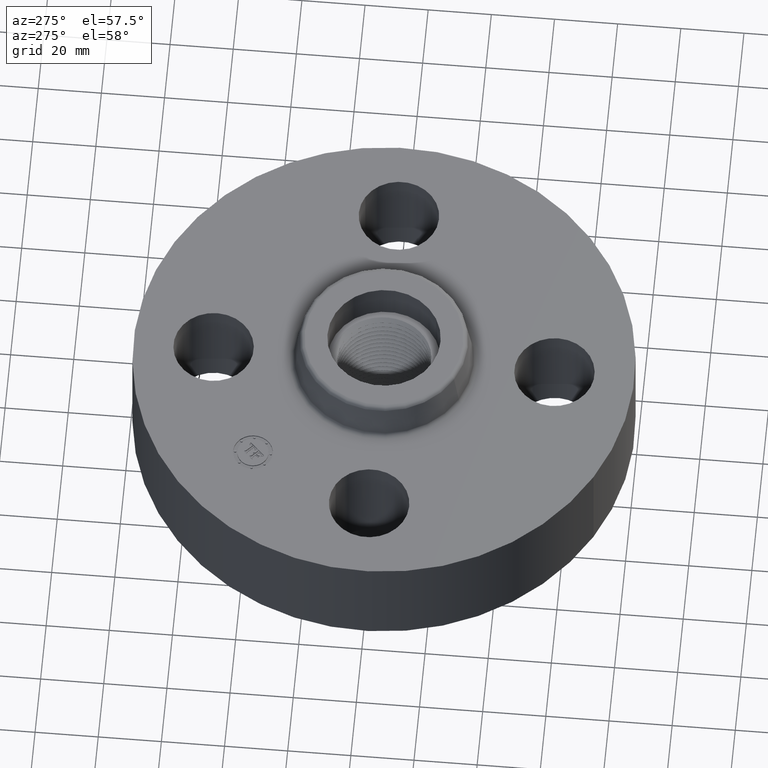
[diagram: clean part render]
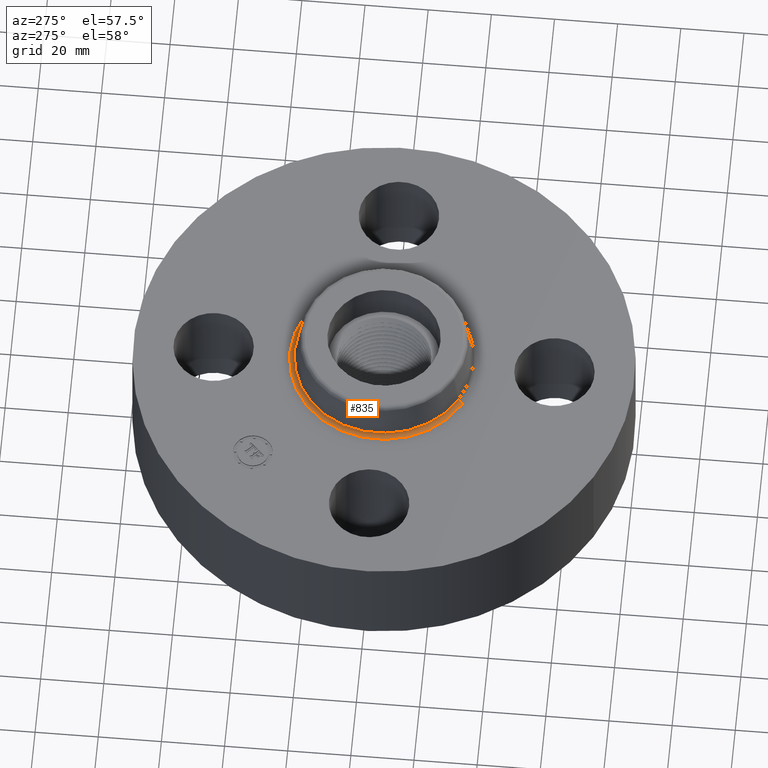
[diagram: same view with one face highlighted and labeled with its STEP entity id]
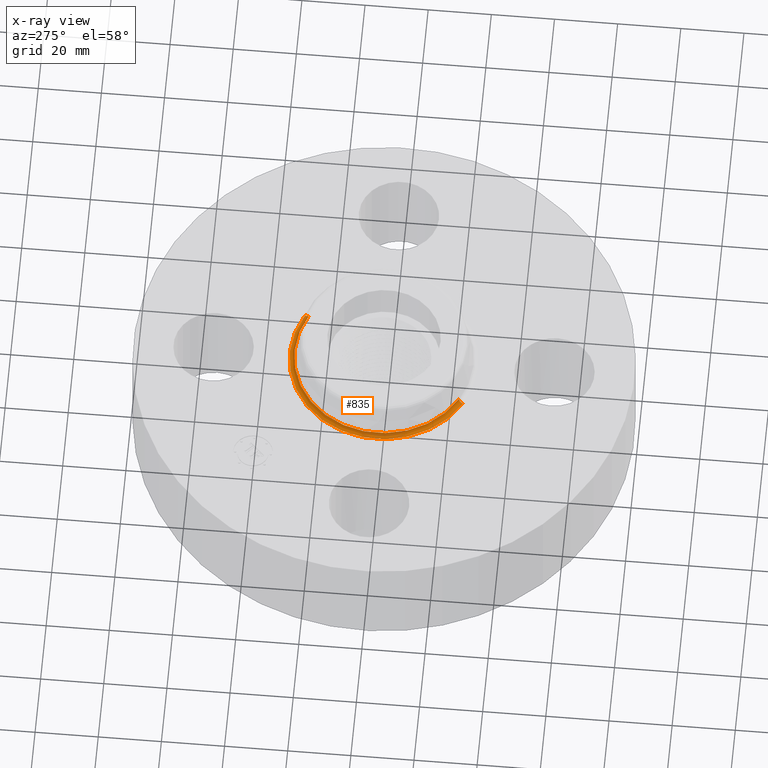
[diagram: x-ray of the same camera — body ghosted, the highlighted face saturated]
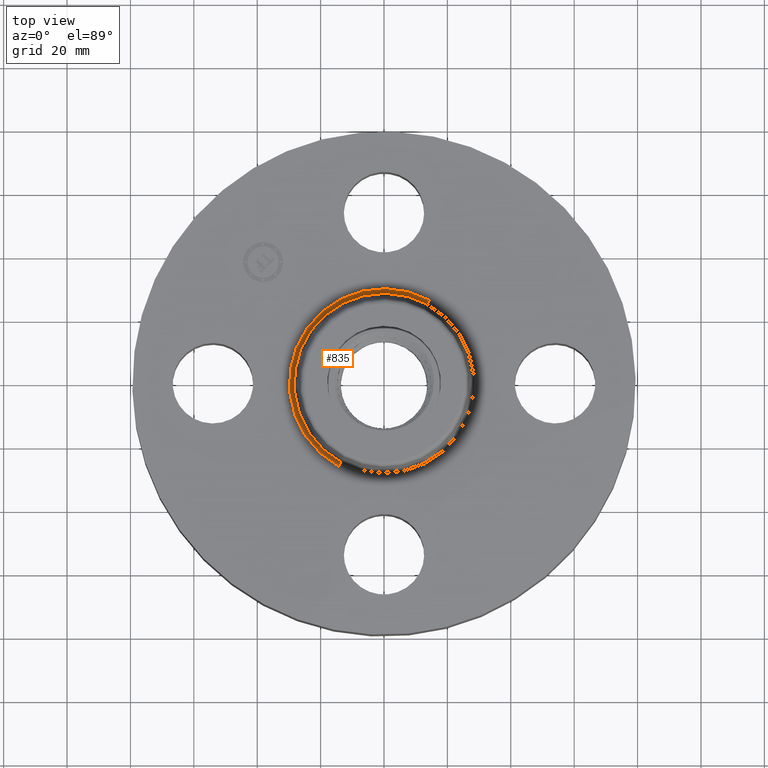
[diagram: same view with one face highlighted and labeled with its STEP entity id]
A machine part, auxiliary view. The second image highlights one B-rep face of the part: STEP entity #835.
The next image is the same camera in x-ray: the body ghosted, the highlighted face saturated — about 0% of this face is hidden behind the body in this view.
A second angle (top view) of the same face is appended — the face is thin or edge-on in the first view.
In plain terms, the highlighted toroidal blend (fillet) surface has major radius 29.8538 mm and minor (blend) radius 1.524 mm.
Its self-contained STEP definition (entity closure, byte-faithful):
#769=AXIS2_PLACEMENT_3D('Circle Axis2P3D',#767,#768,$) ;
#808=AXIS2_PLACEMENT_3D('Torus Axis2P3D',#805,#806,#807) ;
#812=AXIS2_PLACEMENT_3D('Circle Axis2P3D',#810,#811,$) ;
#821=AXIS2_PLACEMENT_3D('Circle Axis2P3D',#819,#820,$) ;
#826=AXIS2_PLACEMENT_3D('Circle Axis2P3D',#824,#825,$) ;
#767=CARTESIAN_POINT('Axis2P3D Location',(0.,0.,1.42958110935)) ;
#771=CARTESIAN_POINT('Vertex',(-0.535162359244,-0.97960812772,1.42958110935)) ;
#773=CARTESIAN_POINT('Vertex',(0.535162359244,0.97960812772,1.42958110935)) ;
#805=CARTESIAN_POINT('Axis2P3D Location',(0.,0.,1.44000000001)) ;
#810=CARTESIAN_POINT('Axis2P3D Location',(0.,0.,1.38000000001)) ;
#814=CARTESIAN_POINT('Vertex',(-0.563490878489,-1.03146313437,1.38000000001)) ;
#816=CARTESIAN_POINT('Vertex',(0.563490878489,1.03146313437,1.38000000001)) ;
#819=CARTESIAN_POINT('Axis2P3D Location',(-0.563490878489,-1.03146313437,1.44000000001)) ;
#824=CARTESIAN_POINT('Axis2P3D Location',(0.563490878489,1.03146313437,1.44000000001)) ;
#768=DIRECTION('Axis2P3D Direction',(0.,0.,-0.0393700787402)) ;
#806=DIRECTION('Axis2P3D Direction',(0.,0.,-0.0393700787402)) ;
#807=DIRECTION('Axis2P3D XDirection',(0.0188750212049,0.0345504945626,0.)) ;
#811=DIRECTION('Axis2P3D Direction',(0.,0.,-0.0393700787402)) ;
#820=DIRECTION('Axis2P3D Direction',(0.0345504945626,-0.0188750212049,0.)) ;
#825=DIRECTION('Axis2P3D Direction',(-0.0345504945626,0.0188750212049,0.)) ;
#830=ORIENTED_EDGE('',*,*,#818,.F.) ;
#831=ORIENTED_EDGE('',*,*,#823,.T.) ;
#832=ORIENTED_EDGE('',*,*,#775,.T.) ;
#833=ORIENTED_EDGE('',*,*,#828,.F.) ;
#835=ADVANCED_FACE('PartBody',(#834),#809,.F.) ;
#770=CIRCLE('generated circle',#769,1.11625751269) ;
#813=CIRCLE('generated circle',#812,1.17534597788) ;
#822=CIRCLE('generated circle',#821,0.0600000000002) ;
#827=CIRCLE('generated circle',#826,0.0600000000002) ;
#809=TOROIDAL_SURFACE('homeo Torus',#808,1.17534597788,0.0600000000002) ;
#775=EDGE_CURVE('',#772,#774,#770,.T.) ;
#818=EDGE_CURVE('',#815,#817,#813,.T.) ;
#823=EDGE_CURVE('',#815,#772,#822,.T.) ;
#828=EDGE_CURVE('',#817,#774,#827,.T.) ;
#829=EDGE_LOOP('',(#830,#831,#832,#833)) ;
#834=FACE_OUTER_BOUND('',#829,.T.) ;
#772=VERTEX_POINT('',#771) ;
#774=VERTEX_POINT('',#773) ;
#815=VERTEX_POINT('',#814) ;
#817=VERTEX_POINT('',#816) ;